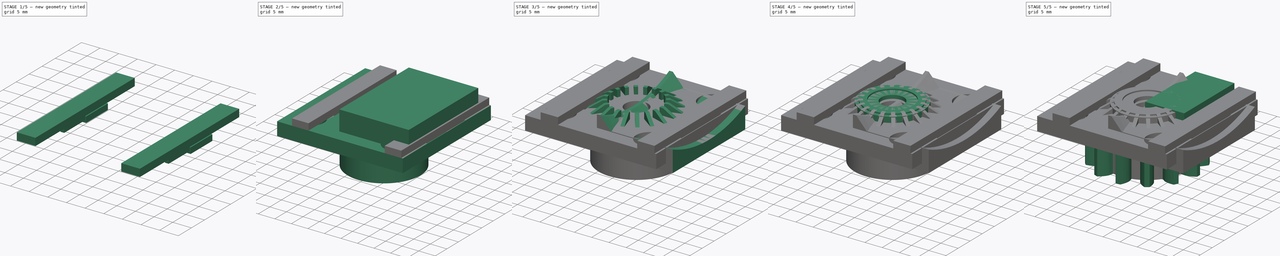
[diagram: build sequence overview — one tinted view per stage of 5, left to right]
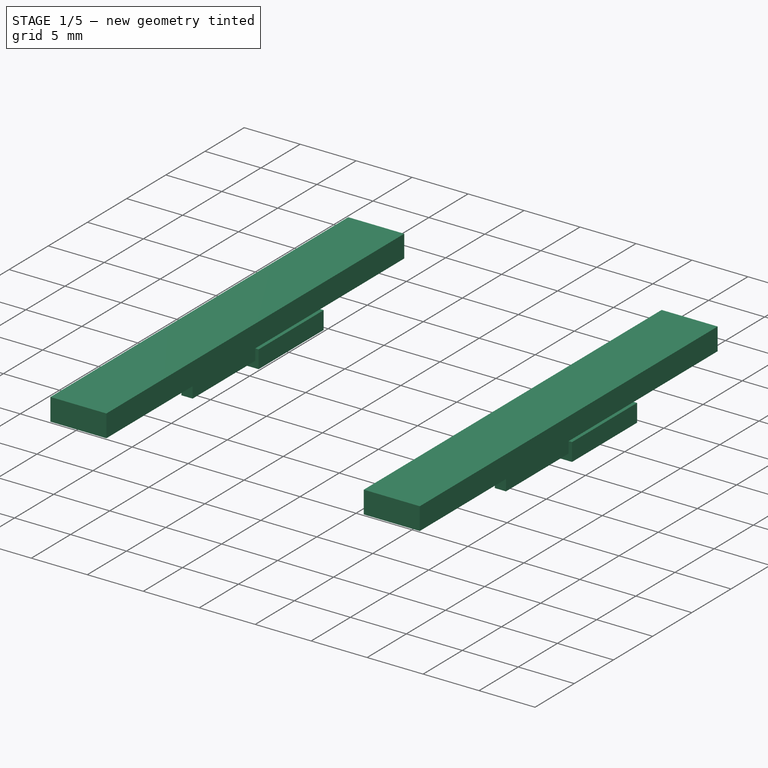
[diagram: stage 1 of 5 — iso view after this stage's code; geometry added in this stage tinted green]
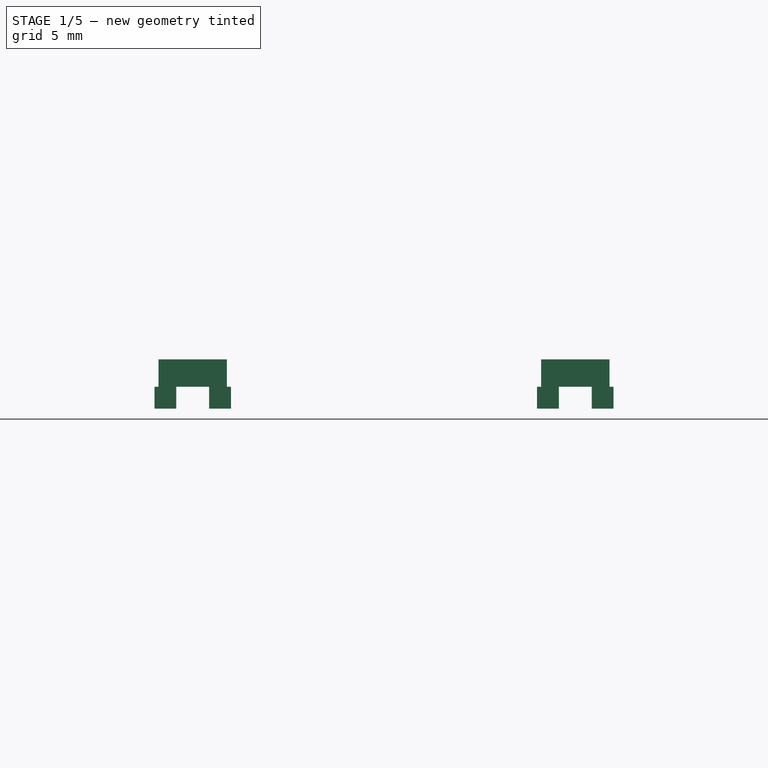
[diagram: stage 1 of 5 — front view after this stage's code; geometry added in this stage tinted green]
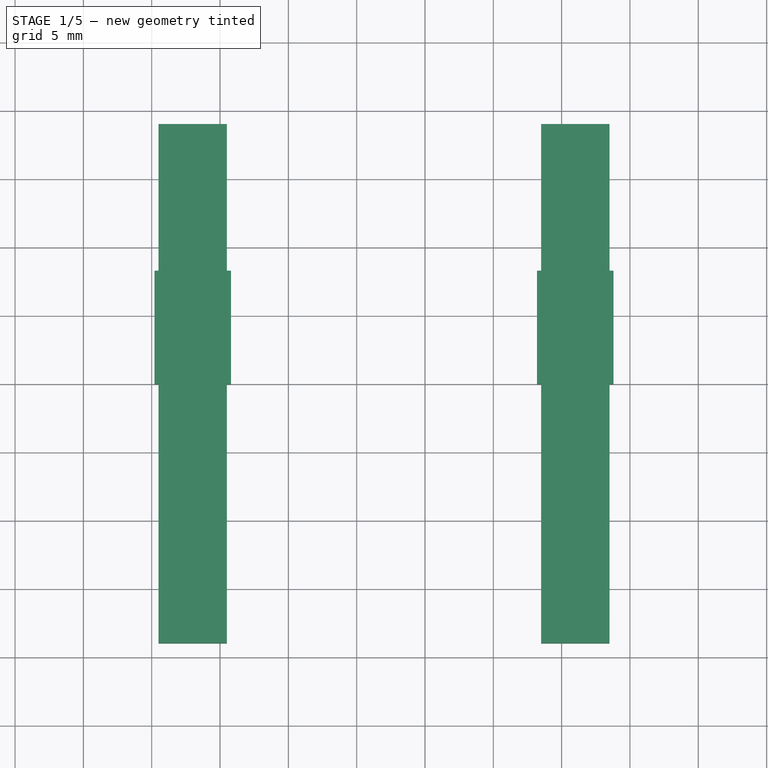
[diagram: stage 1 of 5 — top view after this stage's code; geometry added in this stage tinted green]
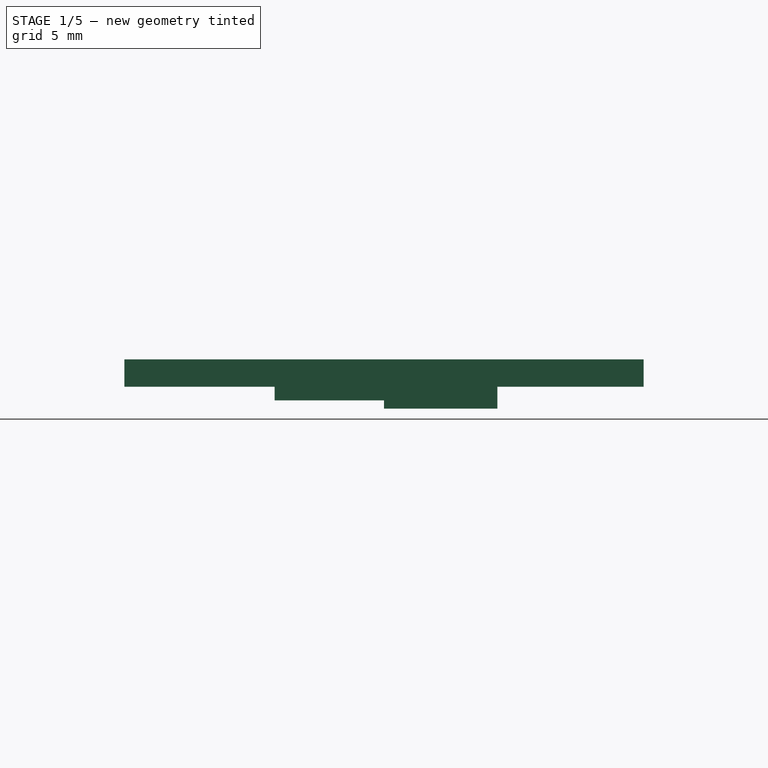
[diagram: stage 1 of 5 — right view after this stage's code; geometry added in this stage tinted green]
FCSTD DOCUMENT  (FreeCAD 0.19R24291 (Git))
Label: knob
License: All rights reserved
LicenseURL: http://en.wikipedia.org/wiki/All_rights_reserved
objects: Sketcher::SketchObject×22, Part::Extrusion×16, Part::MultiFuse×6, PartDesign::FeatureBase×6, PartDesign::Body×6, Part::Revolution×4, Part::Cut×3, Part::Mirroring×2, Part::Part2DObjectPython×1, Part::Sweep×1, Part::MultiCommon×1, Part::Compound×1, Part::FeaturePython×1, App::Part×1
note: 69 computed .brp shape members not serialized (recipe doc carries the construction recipe); baked Part::Feature solids carry a one-line shape summary decoded from their .brp

FEATURE [Sketcher::SketchObject] Sketch011
  FullyConstrained = true
  Placement = pos=(0,0,5) rot=(0,0,1;0rad)
  sketch-geometry (16):
    g0: LineSegment StartX=13.5 StartY=8 StartZ=0 EndX=14.5 EndY=8 EndZ=0
    g1: LineSegment StartX=14.5 StartY=8 StartZ=0 EndX=14.5 EndY=0 EndZ=0
    g2: LineSegment StartX=14.5 StartY=0 StartZ=0 EndX=13.5 EndY=0 EndZ=0
    g3: LineSegment StartX=13.5 StartY=0 StartZ=0 EndX=13.5 EndY=8 EndZ=0
    g4: LineSegment StartX=17.5 StartY=8 StartZ=0 EndX=18.5 EndY=8 EndZ=0
    g5: LineSegment StartX=18.5 StartY=8 StartZ=0 EndX=18.5 EndY=0 EndZ=0
    g6: LineSegment StartX=18.5 StartY=0 StartZ=0 EndX=17.5 EndY=0 EndZ=0
    g7: LineSegment StartX=17.5 StartY=0 StartZ=0 EndX=17.5 EndY=8 EndZ=0
    g8: LineSegment StartX=-9.5 StartY=0 StartZ=0 EndX=-10.5 EndY=0 EndZ=0
    g9: LineSegment StartX=-10.5 StartY=0 StartZ=0 EndX=-10.5 EndY=8 EndZ=0
    g10: LineSegment StartX=-10.5 StartY=8 StartZ=0 EndX=-9.5 EndY=8 EndZ=0
    g11: LineSegment StartX=-9.5 StartY=8 StartZ=0 EndX=-9.5 EndY=0 EndZ=0
    g12: LineSegment StartX=-13.5 StartY=0 StartZ=0 EndX=-14.5 EndY=0 EndZ=0
    g13: LineSegment StartX=-14.5 StartY=0 StartZ=0 EndX=-14.5 EndY=8 EndZ=0
    g14: LineSegment StartX=-14.5 StartY=8 StartZ=0 EndX=-13.5 EndY=8 EndZ=0
    g15: LineSegment StartX=-13.5 StartY=8 StartZ=0 EndX=-13.5 EndY=0 EndZ=0
  constraints (48):
    c: Coincident(g0,g1)
    c: Coincident(g1,g2)
    c: Coincident(g2,g3)
    c: Coincident(g3,g0)
    c: Horizontal(g0)
    c: Horizontal(g2)
    c: Vertical(g1)
    c: Vertical(g3)
    c: PointOnObject(g1,g-1)
    c: Coincident(g4,g5)
    c: Coincident(g5,g6)
    c: Coincident(g6,g7)
    c: Coincident(g7,g4)
    c: Horizontal(g4)
    c: Horizontal(g6)
    c: Vertical(g5)
    c: Vertical(g7)
    c: PointOnObject(g5,g-1)
    c: DistanceX(g2) = 13.5
    c: DistanceX(g2,g2) = 1
    c: DistanceX(g5) = 18.5
    c: DistanceX(g6,g6) = 1
    c: DistanceY(g5,g5) = 8
    c: DistanceY(g1,g1) = 8
    c: Coincident(g8,g9)
    c: Coincident(g9,g10)
    c: Coincident(g10,g11)
    c: Coincident(g11,g8)
    c: Horizontal(g8)
    c: Horizontal(g10)
    c: Vertical(g9)
    c: Vertical(g11)
    c: PointOnObject(g8,g-1)
    c: Coincident(g12,g13)
    c: Coincident(g13,g14)
    c: Coincident(g14,g15)
    c: Coincident(g15,g12)
    c: Horizontal(g12)
    c: Horizontal(g14)
    c: Vertical(g13)
    c: Vertical(g15)
    c: PointOnObject(g12,g-1)
    c: DistanceX(g12,g12) = 1
    c: DistanceX(g12) = -13.5
    c: DistanceX(g8) = -9.5
    c: DistanceY(g15,g15) = 8
    c: DistanceY(g11,g11) = 8
    c: DistanceX(g8,g8) = 1
FEATURE [Part::Extrusion] Extrude010
  Base = -> Sketch011
  Dir = (0,0,1)
  DirMode = 2
  FaceMakerClass = Part::FaceMakerBullseye
  LengthFwd = 0
  LengthRev = 1
  Placement = pos=(0,0,-1) rot=(0,0,1;0rad)
  Solid = true
  Symmetric = false
FEATURE [Sketcher::SketchObject] Sketch012
  FullyConstrained = true
  Placement = pos=(0,0,5) rot=(0,0,1;0rad)
  sketch-geometry (16):
    g0: LineSegment StartX=13.2 StartY=8.3 StartZ=0 EndX=14.8 EndY=8.3 EndZ=0
    g1: LineSegment StartX=14.8 StartY=8.3 StartZ=0 EndX=14.8 EndY=0 EndZ=0
    g2: LineSegment StartX=14.8 StartY=0 StartZ=0 EndX=13.2 EndY=0 EndZ=0
    g3: LineSegment StartX=13.2 StartY=0 StartZ=0 EndX=13.2 EndY=8.3 EndZ=0
    g4: LineSegment StartX=17.2 StartY=8.3 StartZ=0 EndX=18.8 EndY=8.3 EndZ=0
    g5: LineSegment StartX=18.8 StartY=8.3 StartZ=0 EndX=18.8 EndY=0 EndZ=0
    g6: LineSegment StartX=18.8 StartY=0 StartZ=0 EndX=17.2 EndY=0 EndZ=0
    g7: LineSegment StartX=17.2 StartY=0 StartZ=0 EndX=17.2 EndY=8.3 EndZ=0
    g8: LineSegment StartX=-9.2 StartY=0 StartZ=0 EndX=-10.8 EndY=0 EndZ=0
    g9: LineSegment StartX=-10.8 StartY=0 StartZ=0 EndX=-10.8 EndY=8.3 EndZ=0
    g10: LineSegment StartX=-10.8 StartY=8.3 StartZ=0 EndX=-9.2 EndY=8.3 EndZ=0
    g11: LineSegment StartX=-9.2 StartY=8.3 StartZ=0 EndX=-9.2 EndY=0 EndZ=0
    g12: LineSegment StartX=-13.2 StartY=0 StartZ=0 EndX=-14.8 EndY=0 EndZ=0
    g13: LineSegment StartX=-14.8 StartY=0 StartZ=0 EndX=-14.8 EndY=8.3 EndZ=0
    g14: LineSegment StartX=-14.8 StartY=8.3 StartZ=0 EndX=-13.2 EndY=8.3 EndZ=0
    g15: LineSegment StartX=-13.2 StartY=8.3 StartZ=0 EndX=-13.2 EndY=0 EndZ=0
  constraints (48):
    c: Coincident(g0,g1)
    c: Coincident(g1,g2)
    c: Coincident(g2,g3)
    c: Coincident(g3,g0)
    c: Horizontal(g0)
    c: Horizontal(g2)
    c: Vertical(g1)
    c: Vertical(g3)
    c: PointOnObject(g1,g-1)
    c: Coincident(g4,g5)
    c: Coincident(g5,g6)
    c: Coincident(g6,g7)
    c: Coincident(g7,g4)
    c: Horizontal(g4)
    c: Horizontal(g6)
    c: Vertical(g5)
    c: Vertical(g7)
    c: PointOnObject(g5,g-1)
    c: DistanceX(g1) = 14.8
    c: DistanceX(g2,g2) = 1.6
    c: DistanceY(g1,g1) = 8.3
    c: DistanceX(g6,g6) = 1.6
    c: DistanceY(g5,g5) = 8.3
    c: DistanceX(g6) = 17.2
    c: Coincident(g8,g9)
    c: Coincident(g9,g10)
    c: Coincident(g10,g11)
    c: Coincident(g11,g8)
    c: Horizontal(g8)
    c: Horizontal(g10)
    c: Vertical(g9)
    c: Vertical(g11)
    c: PointOnObject(g8,g-1)
    c: Coincident(g12,g13)
    c: Coincident(g13,g14)
    c: Coincident(g14,g15)
    c: Coincident(g15,g12)
    c: Horizontal(g12)
    c: Horizontal(g14)
    c: Vertical(g13)
    c: Vertical(g15)
    c: PointOnObject(g12,g-1)
    c: DistanceX(g8,g8) = 1.6
    c: DistanceX(g12,g12) = 1.6
    c: DistanceY(g11,g11) = 8.3
    c: DistanceY(g15,g15) = 8.3
    c: DistanceX(g8) = -9.2
    c: DistanceX(g12) = -13.2
FEATURE [Part::Extrusion] Extrude011
  Base = -> Sketch012
  Dir = (0,0,1)
  DirMode = 2
  FaceMakerClass = Part::FaceMakerBullseye
  LengthFwd = 0
  LengthRev = 1.6
  Placement = pos=(0,0,-1) rot=(0,0,1;0rad)
  Solid = true
  Symmetric = false
FEATURE [Sketcher::SketchObject] Sketch015
  FullyConstrained = true
  Placement = pos=(0,0,0) rot=(1,0,0;1.5708rad)
  sketch-geometry (8):
    g0: LineSegment StartX=-14.5 StartY=4 StartZ=0 EndX=-9.5 EndY=4 EndZ=0
    g1: LineSegment StartX=-9.5 StartY=4 StartZ=0 EndX=-9.5 EndY=6 EndZ=0
    g2: LineSegment StartX=-9.5 StartY=6 StartZ=0 EndX=-14.5 EndY=6 EndZ=0
    g3: LineSegment StartX=-14.5 StartY=6 StartZ=0 EndX=-14.5 EndY=4 EndZ=0
    g4: LineSegment StartX=13.5 StartY=6 StartZ=0 EndX=13.5 EndY=4 EndZ=0
    g5: LineSegment StartX=13.5 StartY=4 StartZ=0 EndX=18.5 EndY=4 EndZ=0
    g6: LineSegment StartX=18.5 StartY=4 StartZ=0 EndX=18.5 EndY=6 EndZ=0
    g7: LineSegment StartX=18.5 StartY=6 StartZ=0 EndX=13.5 EndY=6 EndZ=0
  constraints (24):
    c: Horizontal(g0)
    c: Coincident(g0,g1)
    c: Vertical(g1)
    c: Horizontal(g2)
    c: Coincident(g2,g3)
    c: Coincident(g3,g0)
    c: Vertical(g3)
    c: Vertical(g4)
    c: Coincident(g4,g5)
    c: Horizontal(g5)
    c: Coincident(g5,g6)
    c: Vertical(g6)
    c: Coincident(g6,g7)
    c: Horizontal(g7)
    c: Coincident(g1,g2)
    c: Coincident(g4,g7)
    c: DistanceX(g4) = 13.5
    c: DistanceY(g4) = 4
    c: DistanceX(g0) = -9.5
    c: Horizontal(g0,g4)
    c: DistanceY(g1,g1) = 2
    c: DistanceY(g4,g4) = 2
    c: DistanceX(g7,g7) = 5
    c: DistanceX(g2,g2) = 5
FEATURE [Part::Extrusion] Extrude012
  Base = -> Sketch015
  Dir = (0,-1,3e-16)
  DirMode = 2
  FaceMakerClass = Part::FaceMakerBullseye
  LengthFwd = 0
  LengthRev = 19
  Solid = true
  Symmetric = false
FEATURE [Part::MultiFuse] Fusion002
  Shapes = -> [Extrude010,Extrude012]
FEATURE [PartDesign::Body] Body
  BaseFeature = -> Cut
  Group = -> [Clone]
  Origin = -> Origin
  Tip = -> Clone
FEATURE [PartDesign::FeatureBase] Clone001
  BaseFeature = -> Fusion002
FEATURE [Part::Mirroring] Part__Mirroring001  label="Body001 (Mirror #2)"
  Base = (0,0,0)
  Normal = (0,1,0)
  Source = -> Body001
FEATURE [Part::MultiFuse] Fusion003  label="barrel"
  Shapes = -> [Fusion002,Part__Mirroring001]
FEATURE [PartDesign::Body] Body004
  BaseFeature = -> Fusion004
  Group = -> [Clone004]
  Origin = -> Origin004
  Placement = pos=(2.3e-14,0,-42) rot=(0,1,0;3.14159rad)
  Tip = -> Clone004
FEATURE [PartDesign::FeatureBase] Clone005
  BaseFeature = -> Fusion003
FEATURE [PartDesign::Body] Body005
  BaseFeature = -> Fusion003
  Group = -> [Clone005]
  Origin = -> Origin005
  Placement = pos=(5e-15,0,-42) rot=(0,1,0;3.14159rad)
  Tip = -> Clone005
FEATURE [App::Part] Part
  Group = -> [Body005,Body004,Body002]
  Origin = -> Origin006
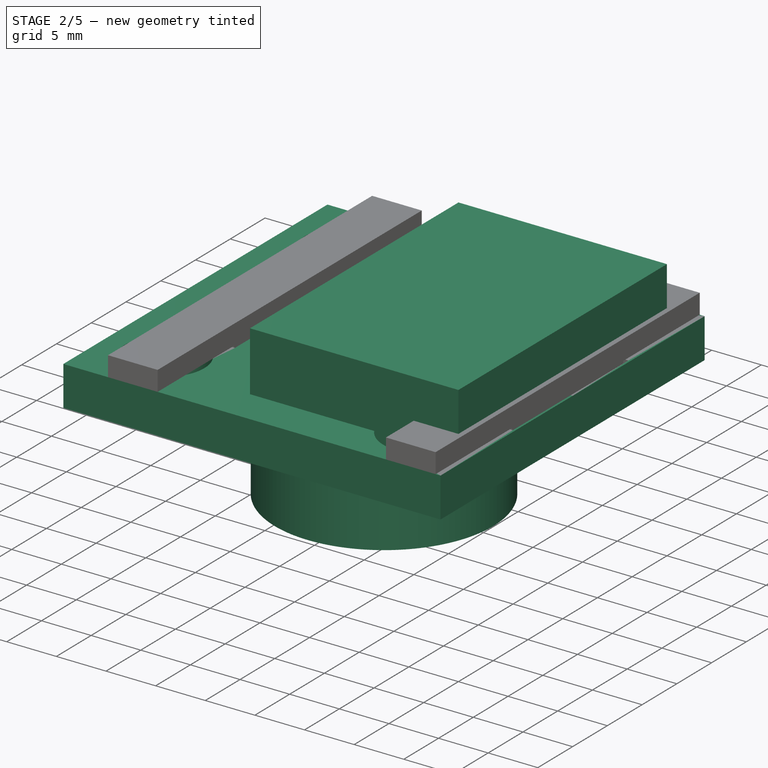
[diagram: stage 2 of 5 — iso view after this stage's code; geometry added in this stage tinted green]
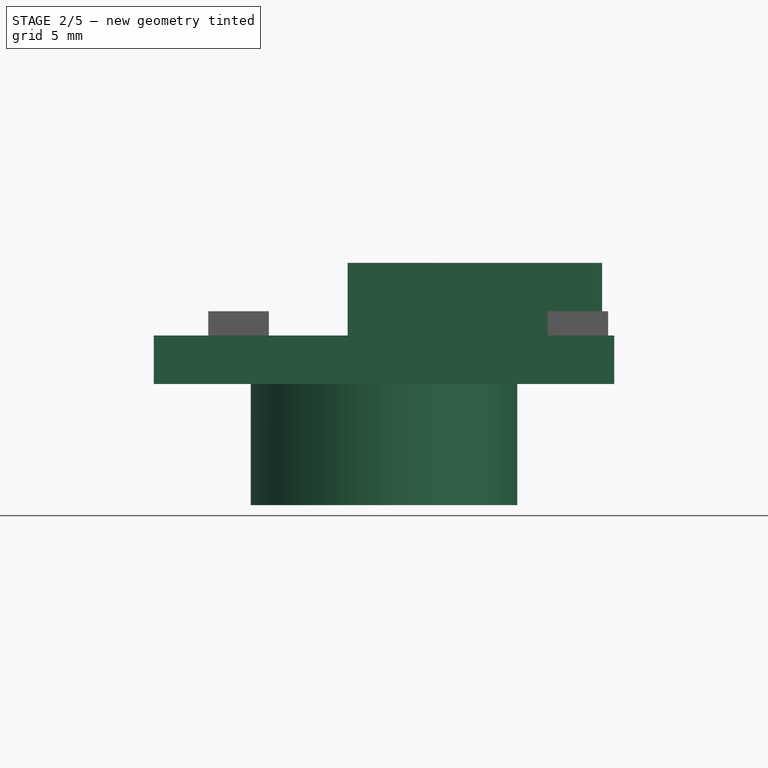
[diagram: stage 2 of 5 — front view after this stage's code; geometry added in this stage tinted green]
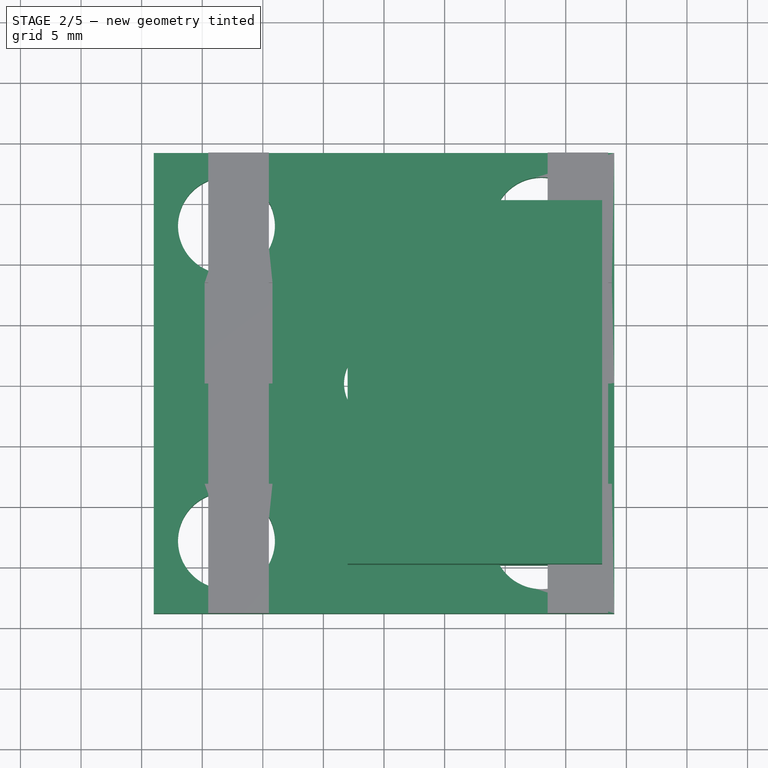
[diagram: stage 2 of 5 — top view after this stage's code; geometry added in this stage tinted green]
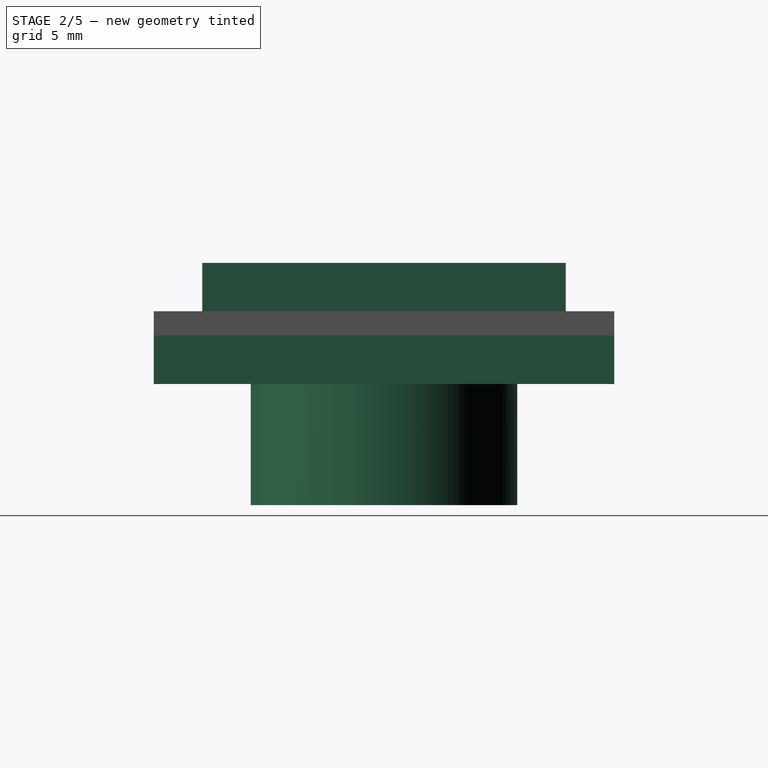
[diagram: stage 2 of 5 — right view after this stage's code; geometry added in this stage tinted green]
FEATURE [Sketcher::SketchObject] Sketch008
  FullyConstrained = true
  sketch-geometry (8):
    g0: ArcOfCircle CenterX=0 CenterY=0 CenterZ=0 NormalX=0 NormalY=0 NormalZ=1 AngleXU=0 Radius=3.3 StartAngle=0 EndAngle=3.14159
    g1: LineSegment StartX=3.3 StartY=0 StartZ=0 EndX=19 EndY=0 EndZ=0
    g2: LineSegment StartX=-19 StartY=19 StartZ=0 EndX=19 EndY=19 EndZ=0
    g3: LineSegment StartX=19 StartY=19 StartZ=0 EndX=19 EndY=0 EndZ=0
    g4: LineSegment StartX=-3.3 StartY=-9.903e-13 StartZ=0 EndX=-19 EndY=-9.903e-13 EndZ=0
    g5: LineSegment StartX=-19 StartY=-9.903e-13 StartZ=0 EndX=-19 EndY=19 EndZ=0
    g6: Circle CenterX=-13 CenterY=13 CenterZ=0 NormalX=0 NormalY=0 NormalZ=1 AngleXU=0 Radius=4
    g7: Circle CenterX=13 CenterY=13 CenterZ=0 NormalX=0 NormalY=0 NormalZ=1 AngleXU=0 Radius=4
  constraints (24):
    c: Coincident(g0,g-1)
    c: PointOnObject(g0,g-1)
    c: Coincident(g1,g0)
    c: Horizontal(g1)
    c: Radius(g0) = 3.3
    c: Horizontal(g2)
    c: Coincident(g3,g1)
    c: Vertical(g3)
    c: PointOnObject(g0,g-1)
    c: Coincident(g0,g4)
    c: Coincident(g4,g5)
    c: Vertical(g5)
    c: Horizontal(g4)
    c: DistanceX(g4) = -19
    c: DistanceX(g1) = 19
    c: DistanceY(g2) = 19
    c: Coincident(g2,g5)
    c: Coincident(g2,g3)
    c: DistanceX(g7) = 13
    c: DistanceY(g7) = 13
    c: DistanceX(g6) = -13
    c: Horizontal(g6,g7)
    c: Radius(g7) = 4
    c: Radius(g6) = 4
FEATURE [Part::Extrusion] Extrude007
  Base = -> Sketch008
  Dir = (0,0,1)
  DirMode = 2
  FaceMakerClass = Part::FaceMakerBullseye
  LengthFwd = 4
  LengthRev = 0
  Solid = true
  Symmetric = false
FEATURE [Part::Cut] Cut
  Base = -> Extrude007
  Tool = -> Extrude011
FEATURE [Sketcher::SketchObject] Sketch014
  FullyConstrained = true
  Placement = pos=(0,0,0) rot=(1,0,0;1.5708rad)
  sketch-geometry (5):
    g0: LineSegment StartX=-11 StartY=0 StartZ=0 EndX=-11 EndY=-10 EndZ=0
    g1: LineSegment StartX=-11 StartY=-10 StartZ=0 EndX=-10 EndY=-10 EndZ=0
    g2: LineSegment StartX=-10 StartY=-10 StartZ=0 EndX=-10 EndY=-3 EndZ=0
    g3: LineSegment StartX=-10 StartY=-3 StartZ=0 EndX=-7 EndY=0 EndZ=0
    g4: LineSegment StartX=-7 StartY=0 StartZ=0 EndX=-11 EndY=0 EndZ=0
  constraints (15):
    c: PointOnObject(g0,g-1)
    c: Vertical(g0)
    c: Coincident(g0,g1)
    c: Horizontal(g1)
    c: Coincident(g1,g2)
    c: Vertical(g2)
    c: Coincident(g2,g3)
    c: Coincident(g3,g4)
    c: Coincident(g4,g0)
    c: Horizontal(g4)
    c: DistanceY(g0,g0) = 10
    c: DistanceX(g4,g4) = 4
    c: DistanceX(g1,g1) = 1
    c: DistanceY(g2,g3) = 3
    c: DistanceX(g0) = -11
FEATURE [Part::Revolution] Revolve001
  Angle = 360
  Axis = (0,0,1)
  Base = (0,0,0)
  FaceMakerClass = Part::FaceMakerBullseye
  Solid = true
  Source = -> Sketch014
  Symmetric = false
FEATURE [PartDesign::FeatureBase] Clone
  BaseFeature = -> Cut
FEATURE [PartDesign::Body] Body001
  BaseFeature = -> Fusion002
  Group = -> [Clone001]
  Origin = -> Origin001
  Tip = -> Clone001
FEATURE [Part::Mirroring] Part__Mirroring  label="Body (Mirror #1)"
  Base = (0,0,0)
  Normal = (0,1,0)
  Source = -> Body
FEATURE [Part::MultiFuse] Fusion004  label="barrel001"
  Shapes = -> [Part__Mirroring,Cut,Revolve001]
FEATURE [Sketcher::SketchObject] Sketch020
  FullyConstrained = true
  sketch-geometry (4):
    g0: LineSegment StartX=-3 StartY=15 StartZ=0 EndX=18 EndY=15 EndZ=0
    g1: LineSegment StartX=18 StartY=15 StartZ=0 EndX=18 EndY=-15 EndZ=0
    g2: LineSegment StartX=18 StartY=-15 StartZ=0 EndX=-3 EndY=-15 EndZ=0
    g3: LineSegment StartX=-3 StartY=-15 StartZ=0 EndX=-3 EndY=15 EndZ=0
  constraints (12):
    c: Coincident(g0,g1)
    c: Coincident(g1,g2)
    c: Coincident(g2,g3)
    c: Coincident(g3,g0)
    c: Horizontal(g0)
    c: Horizontal(g2)
    c: Vertical(g1)
    c: Vertical(g3)
    c: DistanceX(g0,g0) = 21
    c: DistanceY(g1,g1) = 30
    c: DistanceX(g0) = 18
    c: DistanceY(g0) = 15
FEATURE [Part::Extrusion] Extrude015
  Base = -> Sketch020
  Dir = (0,0,1)
  DirMode = 2
  FaceMakerClass = Part::FaceMakerBullseye
  LengthFwd = 10
  LengthRev = 0
  Solid = true
  Symmetric = false
FEATURE [PartDesign::FeatureBase] Clone004
  BaseFeature = -> Fusion004
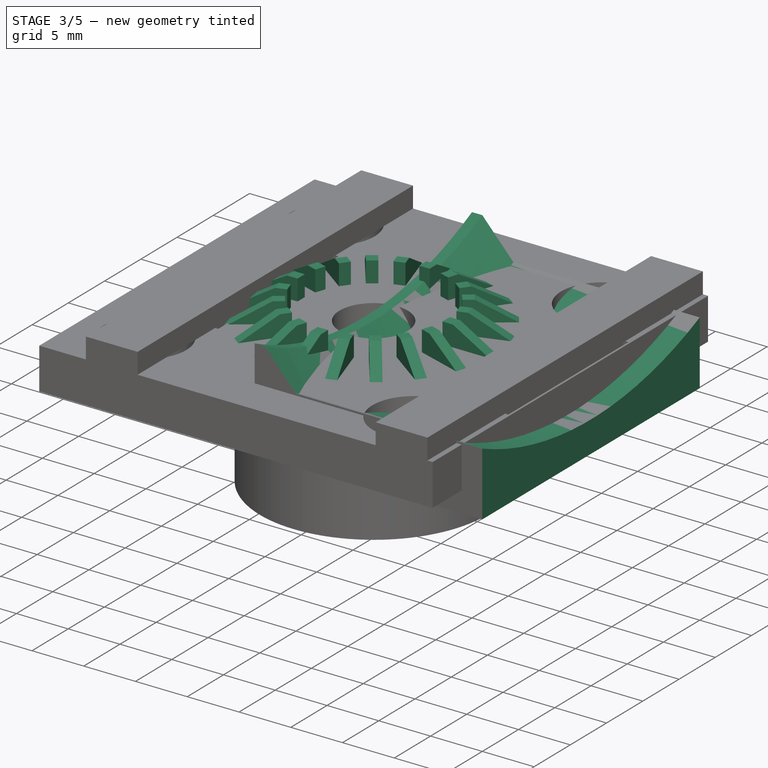
[diagram: stage 3 of 5 — iso view after this stage's code; geometry added in this stage tinted green]
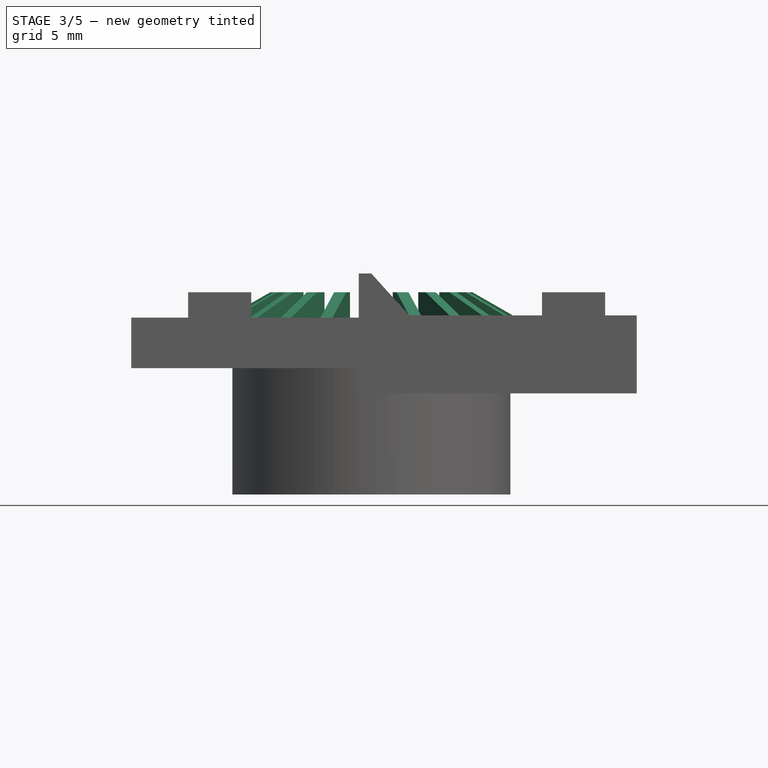
[diagram: stage 3 of 5 — front view after this stage's code; geometry added in this stage tinted green]
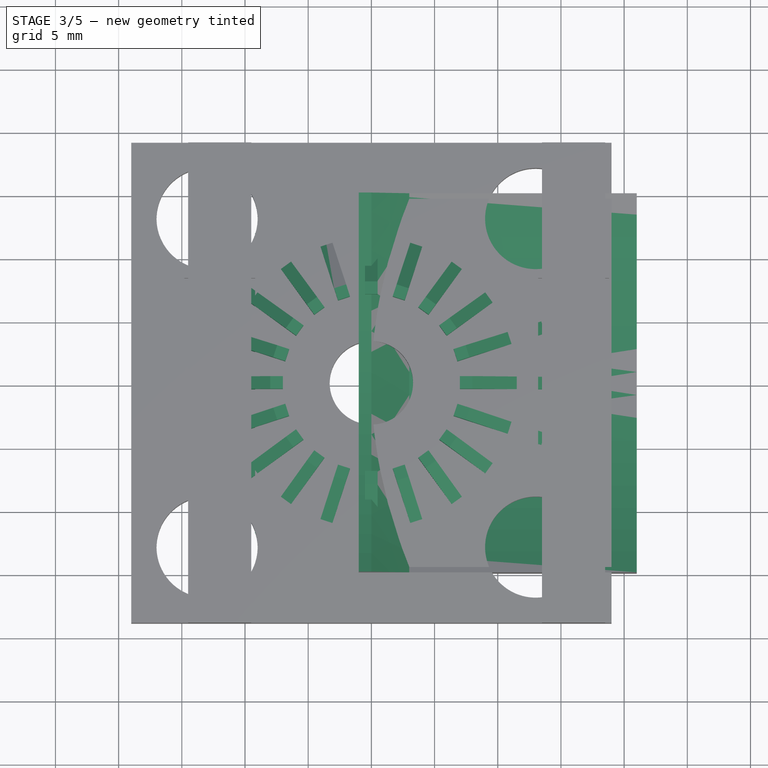
[diagram: stage 3 of 5 — top view after this stage's code; geometry added in this stage tinted green]
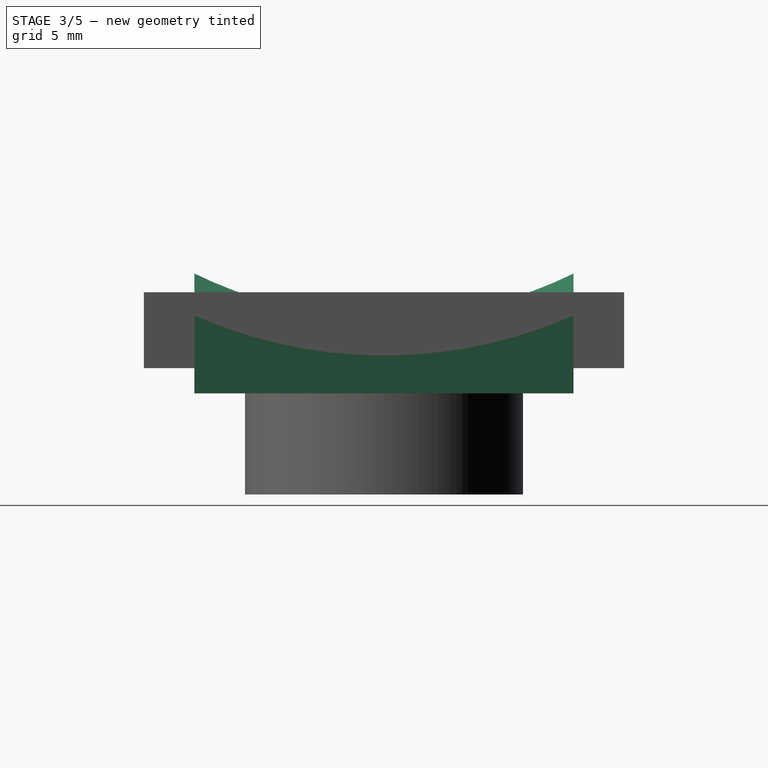
[diagram: stage 3 of 5 — right view after this stage's code; geometry added in this stage tinted green]
FEATURE [Sketcher::SketchObject] Sketch016
  FullyConstrained = true
  Placement = pos=(0,0,0) rot=(0.57735,0.57735,0.57735;2.0944rad)
  sketch-geometry (1):
    g0: ArcOfCircle CenterX=0 CenterY=38 CenterZ=0 NormalX=0 NormalY=0 NormalZ=1 AngleXU=0 Radius=37 StartAngle=4.14131 EndAngle=5.28347
  constraints (5):
    c: PointOnObject(g0,g-2)
    c: Radius(g0) = 37
    c: DistanceX(g0) = 20
    c: DistanceY(g0) = 38
    c: DistanceX(g0) = -20
FEATURE [Sketcher::SketchObject] Sketch017
  FullyConstrained = false
  Placement = pos=(0,0,0) rot=(1,0,0;1.5708rad)
  sketch-geometry (4):
    g0: LineSegment StartX=0 StartY=4 StartZ=0 EndX=3 EndY=1 EndZ=0
    g1: LineSegment StartX=0 StartY=4 StartZ=0 EndX=-1 EndY=4 EndZ=0
    g2: LineSegment StartX=-1 StartY=4 StartZ=0 EndX=-1 EndY=1 EndZ=0
    g3: LineSegment StartX=-1 StartY=1 StartZ=0 EndX=3 EndY=1 EndZ=0
  constraints (8):
    c: PointOnObject(g0,g-2)
    c: Coincident(g0,g1)
    c: Horizontal(g1)
    c: Coincident(g1,g2)
    c: Vertical(g2)
    c: Coincident(g2,g3)
    c: Coincident(g3,g0)
    c: Horizontal(g3)
FEATURE [Part::Sweep] Sweep
  Frenet = false
  Sections = -> [Sketch017]
  Solid = true
  Spine = -> Sketch016
  Transition = 1
FEATURE [Sketcher::SketchObject] Sketch018
  FullyConstrained = true
  sketch-geometry (5):
    g0: LineSegment StartX=-1 StartY=15 StartZ=0 EndX=21 EndY=15 EndZ=0
    g1: LineSegment StartX=21 StartY=15 StartZ=0 EndX=21 EndY=-15 EndZ=0
    g2: LineSegment StartX=21 StartY=-15 StartZ=0 EndX=-1 EndY=-15 EndZ=0
    g3: LineSegment StartX=-1 StartY=-15 StartZ=0 EndX=-1 EndY=15 EndZ=0
    g4: Circle CenterX=12 CenterY=0 CenterZ=0 NormalX=0 NormalY=0 NormalZ=1 AngleXU=0 Radius=3.3
  constraints (15):
    c: Coincident(g0,g1)
    c: Coincident(g1,g2)
    c: Coincident(g2,g3)
    c: Coincident(g3,g0)
    c: Horizontal(g0)
    c: Horizontal(g2)
    c: Vertical(g1)
    c: Vertical(g3)
    c: PointOnObject(g4,g-1)
    c: Radius(g4) = 3.3
    c: DistanceX(g0,g4) = 13
    c: DistanceX(g0,g0) = 22
    c: DistanceY(g1,g1) = 30
    c: DistanceX(g0) = 21
    c: DistanceY(g0) = 15
FEATURE [Part::Extrusion] Extrude013
  Base = -> Sketch018
  Dir = (0,0,1)
  DirMode = 2
  FaceMakerClass = Part::FaceMakerBullseye
  LengthFwd = 10
  LengthRev = 2
  Solid = true
  Symmetric = false
FEATURE [Sketcher::SketchObject] Sketch019
  FullyConstrained = false
  Placement = pos=(-2,0,0) rot=(0.57735,0.57735,0.57735;2.0944rad)
  sketch-geometry (2):
    g0: ArcOfCircle CenterX=0 CenterY=38 CenterZ=0 NormalX=0 NormalY=0 NormalZ=1 AngleXU=0 Radius=37 StartAngle=3.62957 EndAngle=5.79521
    g1: LineSegment StartX=-32.6815 StartY=20.6529 StartZ=0 EndX=32.6815 EndY=20.6529 EndZ=0
  constraints (6):
    c: PointOnObject(g0,g-2)
    c: Radius(g0) = 37
    c: DistanceY(g0) = 38
    c: Coincident(g1,g0)
    c: Coincident(g1,g0)
    c: Horizontal(g1)
FEATURE [Part::Extrusion] Extrude014
  Base = -> Sketch019
  Dir = (1,-2e-16,2e-16)
  DirMode = 2
  FaceMakerClass = Part::FaceMakerBullseye
  LengthFwd = 30
  LengthRev = 0
  Solid = true
  Symmetric = false
FEATURE [Part::Cut] Cut002
  Base = -> Extrude013
  Tool = -> Extrude014
FEATURE [Part::MultiCommon] Common
  Shapes = -> [Extrude015,Sweep]
FEATURE [Part::Compound] Compound  label="lens adapter"
  Links = -> [Cut002,Common]
FEATURE [PartDesign::FeatureBase] Clone002
  BaseFeature = -> Compound
FEATURE [Sketcher::SketchObject] Sketch023
  FullyConstrained = true
  Placement = pos=(0,0,0) rot=(1,0,0;1.5708rad)
  sketch-geometry (4):
    g0: LineSegment StartX=-8 StartY=6 StartZ=0 EndX=-15 EndY=2 EndZ=0
    g1: LineSegment StartX=-15 StartY=2 StartZ=0 EndX=-7 EndY=2 EndZ=0
    g2: LineSegment StartX=-8 StartY=6 StartZ=0 EndX=-7 EndY=6 EndZ=0
    g3: LineSegment StartX=-7 StartY=6 StartZ=0 EndX=-7 EndY=2 EndZ=0
  constraints (12):
    c: Coincident(g0,g1)
    c: Horizontal(g1)
    c: Coincident(g0,g2)
    c: Horizontal(g2)
    c: Coincident(g2,g3)
    c: Vertical(g3)
    c: Coincident(g1,g3)
    c: DistanceX(g1) = -7
    c: DistanceY(g1) = 2
    c: DistanceY(g3,g3) = 4
    c: DistanceX(g1,g1) = 8
    c: DistanceX(g2,g2) = 1
FEATURE [Part::Extrusion] Extrude016
  Base = -> Sketch023
  Dir = (0,-1,3e-16)
  DirMode = 2
  FaceMakerClass = Part::FaceMakerBullseye
  LengthFwd = 0.5
  LengthRev = 0.5
  Solid = true
  Symmetric = false
FEATURE [Part::FeaturePython] Array  # Draft array (typed FeaturePython)
  Angle = 360
  ArrayType = 1
  Axis = (0,0,1)
  Base = -> Extrude016
  Center = (0,0,0)
  Count = 20
  ExpandArray = false
  Fuse = false
  IntervalAxis = (0,0,0)
  IntervalX = (100,0,0)
  IntervalY = (0,100,0)
  IntervalZ = (0,0,100)
  NumberCircles = 3
  NumberPolar = 20
  NumberX = 2
  NumberY = 2
  NumberZ = 1
  PlacementList = 20 placements: [(0,0,0),(0,0,0),(0,0,0),(0,0,0),(0,0,0),(0,0,0),(0,0,0),(0,0,0),(0,0,0),(0,0,0),(0,0,0),(0,0,0),(0,0,0),(0,0,0),(0,0,0),(0,0,0),(0,0,0),(0,0,0),(0,0,0),(0,0,0)]
  RadialDistance = 50
  ScaleList = (20) [(1,1,1),(1,1,1),(1,1,1),(1,1,1),(1,1,1),(1,1,1),(1,1,1),(1,1,1),(1,1,1),(1,1,1),(1,1,1),(1,1,1),(1,1,1),(1,1,1),(1,1,1),(1,1,1),(1,1,1),(1,1,1),(1,1,1),(1,1,1)]
  Symmetry = 1
  TangentialDistance = 25
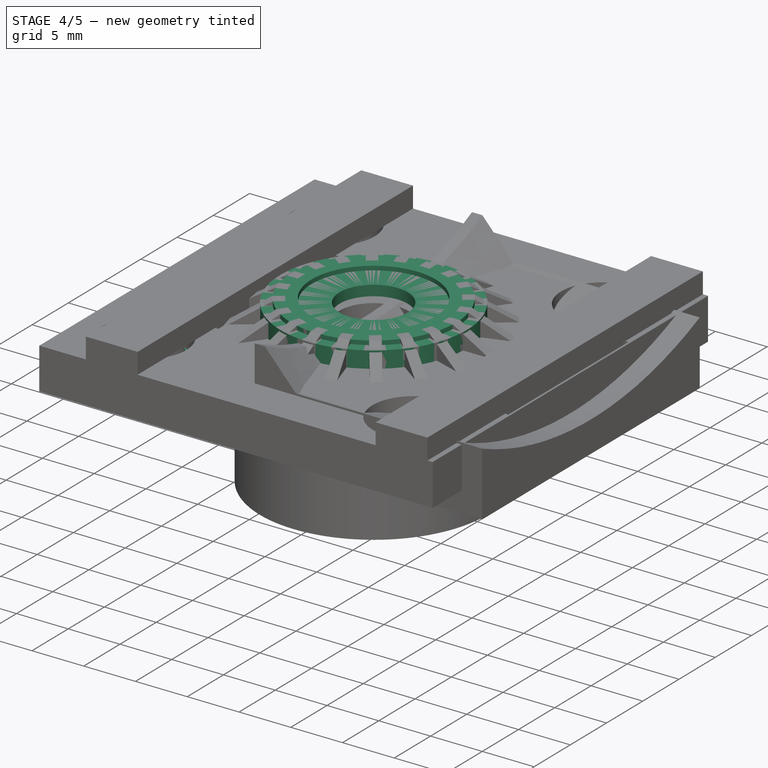
[diagram: stage 4 of 5 — iso view after this stage's code; geometry added in this stage tinted green]
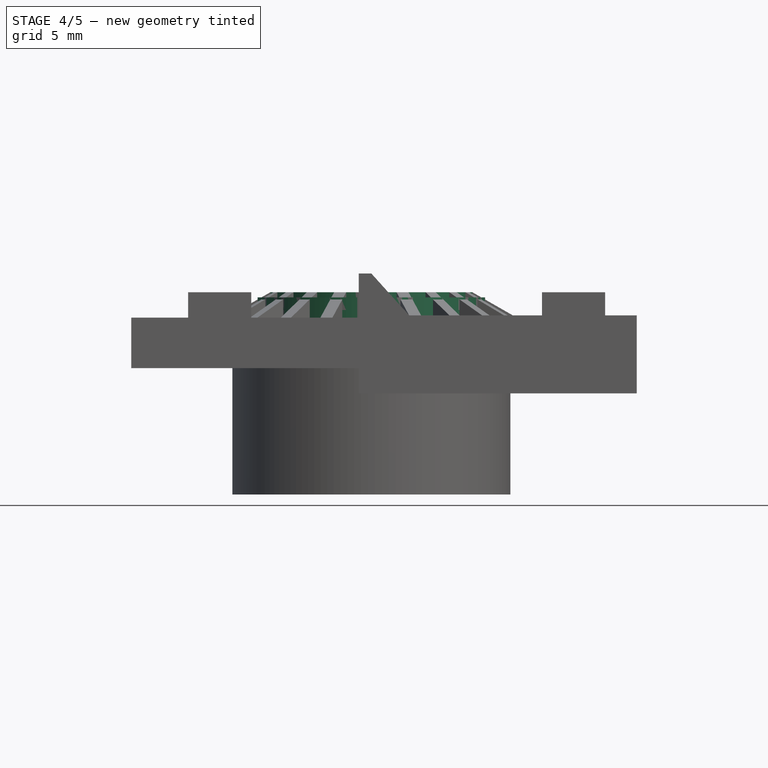
[diagram: stage 4 of 5 — front view after this stage's code; geometry added in this stage tinted green]
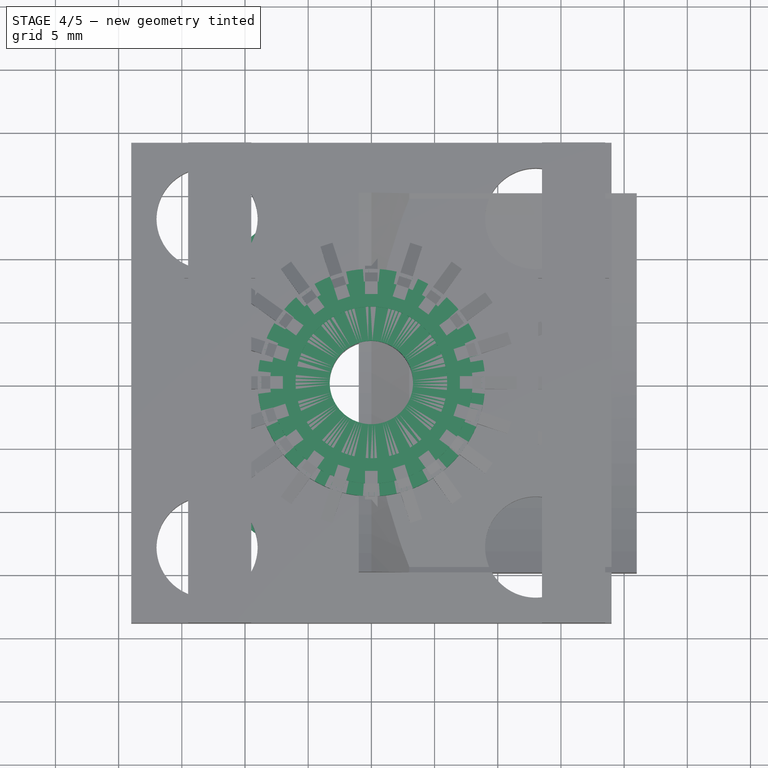
[diagram: stage 4 of 5 — top view after this stage's code; geometry added in this stage tinted green]
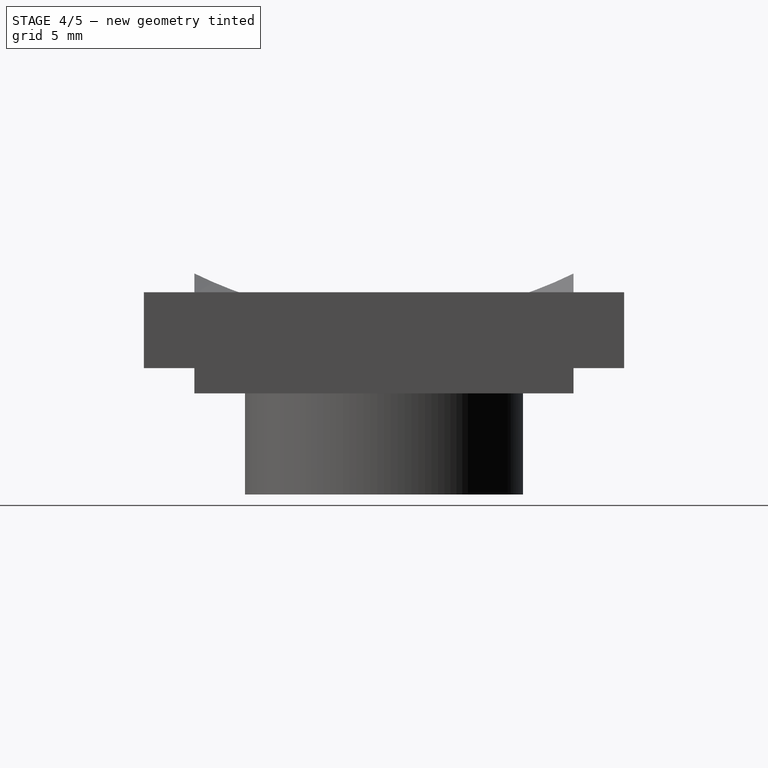
[diagram: stage 4 of 5 — right view after this stage's code; geometry added in this stage tinted green]
FEATURE [Sketcher::SketchObject] Sketch001
  FullyConstrained = true
  sketch-geometry (8):
    g0: LineSegment StartX=5.71577 StartY=3.3 StartZ=0 EndX=3.3165e-12 EndY=6.6 EndZ=0
    g1: LineSegment StartX=3.3165e-12 StartY=6.6 StartZ=0 EndX=-5.71577 EndY=3.3 EndZ=0
    g2: LineSegment StartX=-5.71577 StartY=3.3 StartZ=0 EndX=-5.71577 EndY=-3.3 EndZ=0
    g3: LineSegment StartX=-5.71577 StartY=-3.3 StartZ=0 EndX=-2.8288e-12 EndY=-6.6 EndZ=0
    g4: LineSegment StartX=-2.8288e-12 StartY=-6.6 StartZ=0 EndX=5.71577 EndY=-3.3 EndZ=0
    g5: LineSegment StartX=5.71577 StartY=-3.3 StartZ=0 EndX=5.71577 EndY=3.3 EndZ=0
    g6: Circle CenterX=0 CenterY=0 CenterZ=0 NormalX=0 NormalY=0 NormalZ=1 AngleXU=0 Radius=6.6
    g7: Circle CenterX=0 CenterY=0 CenterZ=0 NormalX=0 NormalY=0 NormalZ=1 AngleXU=0 Radius=9
  constraints (18):
    c: Coincident(g0,g1)
    c: Coincident(g1,g2)
    c: Coincident(g2,g3)
    c: Coincident(g3,g4)
    c: Coincident(g4,g5)
    c: Coincident(g5,g0)
    c: Equal(g0, g1-g5) x5
    c: PointOnObject(g0,g6)
    c: PointOnObject(g1,g6)
    c: PointOnObject(g2,g6)
    c: PointOnObject(g3,g6)
    c: PointOnObject(g4,g6)
    c: PointOnObject(g5,g6)
    c: Coincident(g6,g-1)
    c: Radius(g6) = 6.6
    c: Vertical(g5)
    c: Coincident(g7,g-1)
    c: Radius(g7) = 9
FEATURE [Sketcher::SketchObject] Sketch002
  FullyConstrained = false
  sketch-geometry (2):
    g0: Circle CenterX=0 CenterY=0 CenterZ=0 NormalX=0 NormalY=0 NormalZ=1 AngleXU=0 Radius=9
    g1: Circle CenterX=0 CenterY=0 CenterZ=0 NormalX=0 NormalY=0 NormalZ=1 AngleXU=0 Radius=3.3
  constraints (3):
    c: Radius(g0) = 9
    c: Coincident(g1,g0)
    c: Radius(g1) = 3.3
FEATURE [Part::Extrusion] Extrude001
  Base = -> Sketch002
  Dir = (0,0,1)
  DirMode = 2
  FaceMakerClass = Part::FaceMakerBullseye
  LengthFwd = 1
  LengthRev = 0
  Placement = pos=(0,0,4.6) rot=(0,0,1;0rad)
  Solid = true
  Symmetric = false
FEATURE [Part::Extrusion] Extrude002
  Base = -> Sketch001
  Dir = (0,0,1)
  DirMode = 2
  FaceMakerClass = Part::FaceMakerBullseye
  LengthFwd = 4.6
  LengthRev = 0
  Solid = true
  Symmetric = false
FEATURE [Sketcher::SketchObject] Sketch003
  FullyConstrained = false
  sketch-geometry (2):
    g0: Circle CenterX=0 CenterY=0 CenterZ=0 NormalX=0 NormalY=0 NormalZ=1 AngleXU=0 Radius=8.5
    g1: Circle CenterX=0 CenterY=0 CenterZ=0 NormalX=0 NormalY=0 NormalZ=1 AngleXU=0 Radius=7.5
  constraints (3):
    c: Radius(g0) = 8.5
    c: Coincident(g1,g0)
    c: Radius(g1) = 7.5
FEATURE [Part::Extrusion] Extrude003
  Base = -> Sketch003
  Dir = (0,0,1)
  DirMode = 2
  FaceMakerClass = Part::FaceMakerBullseye
  LengthFwd = 0
  LengthRev = 1.2
  Solid = true
  Symmetric = false
FEATURE [Sketcher::SketchObject] Sketch007
  FullyConstrained = true
  Placement = pos=(0,0,0) rot=(1,0,0;1.5708rad)
  sketch-geometry (3):
    g0: LineSegment StartX=-9 StartY=1.4 StartZ=0 EndX=-9 EndY=0 EndZ=0
    g1: LineSegment StartX=-9 StartY=0 StartZ=0 EndX=-10.4 EndY=0 EndZ=0
    g2: LineSegment StartX=-10.4 StartY=0 StartZ=0 EndX=-9 EndY=1.4 EndZ=0
  constraints (9):
    c: Vertical(g0)
    c: Coincident(g0,g1)
    c: PointOnObject(g1,g-1)
    c: Horizontal(g1)
    c: Coincident(g1,g2)
    c: Coincident(g2,g0)
    c: DistanceX(g1,g0) = 1.4
    c: DistanceY(g1,g0) = 1.4
    c: DistanceX(g0) = -9
FEATURE [Part::Revolution] Revolve
  Angle = 360
  Axis = (0,0,1)
  Base = (0,0,0)
  FaceMakerClass = Part::FaceMakerBullseye
  Solid = true
  Source = -> Sketch007
  Symmetric = false
FEATURE [Part::MultiFuse] Fusion  label="knob1"
  Shapes = -> [Extrude002,Extrude001,Extrude003,Revolve]
FEATURE [PartDesign::FeatureBase] Clone003
  BaseFeature = -> Fusion
FEATURE [PartDesign::Body] Body003
  BaseFeature = -> Fusion
  Group = -> [Clone003]
  Origin = -> Origin003
  Placement = pos=(-1e-15,0,12) rot=(0,1,0;3.14159rad)
  Tip = -> Clone003
FEATURE [Sketcher::SketchObject] Sketch022
  FullyConstrained = true
  Placement = pos=(0,0,0) rot=(1,0,0;1.5708rad)
  sketch-geometry (8):
    g0: LineSegment StartX=-3.3 StartY=1 StartZ=0 EndX=-15 EndY=1 EndZ=0
    g1: LineSegment StartX=-15 StartY=2 StartZ=0 EndX=-15 EndY=1 EndZ=0
    g2: LineSegment StartX=-8 StartY=6 StartZ=0 EndX=-8 EndY=2 EndZ=0
    g3: LineSegment StartX=-8 StartY=2 StartZ=0 EndX=-15 EndY=2 EndZ=0
    g4: LineSegment StartX=-8 StartY=6 StartZ=0 EndX=-6 EndY=6 EndZ=0
    g5: LineSegment StartX=-6 StartY=6 StartZ=0 EndX=-6 EndY=2 EndZ=0
    g6: LineSegment StartX=-6 StartY=2 StartZ=0 EndX=-3.3 EndY=2 EndZ=0
    g7: LineSegment StartX=-3.3 StartY=2 StartZ=0 EndX=-3.3 EndY=1 EndZ=0
  constraints (24):
    c: Horizontal(g0)
    c: Coincident(g1,g0)
    c: Vertical(g1)
    c: DistanceY(g0,g4) = 5
    c: DistanceX(g1,g4) = 9
    c: DistanceY(g0) = 1
    c: Vertical(g2)
    c: Coincident(g2,g3)
    c: Coincident(g3,g1)
    c: Horizontal(g3)
    c: DistanceX(g2,g4) = 2
    c: DistanceY(g1,g1) = 1
    c: Coincident(g4,g2)
    c: Horizontal(g4)
    c: Coincident(g4,g5)
    c: Vertical(g5)
    c: Coincident(g5,g6)
    c: Horizontal(g6)
    c: Coincident(g6,g7)
    c: Vertical(g7)
    c: DistanceX(g7) = -3.3
    c: Coincident(g0,g7)
    c: Horizontal(g5,g2)
    c: DistanceX(g6,g6) = 2.7
FEATURE [Part::Revolution] Revolve003
  Angle = 360
  Axis = (0,0,1)
  Base = (0,0,0)
  FaceMakerClass = Part::FaceMakerBullseye
  Solid = true
  Source = -> Sketch022
  Symmetric = false
FEATURE [Part::MultiFuse] Fusion005  label="barrel003"
  Shapes = -> [Array,Revolve003]
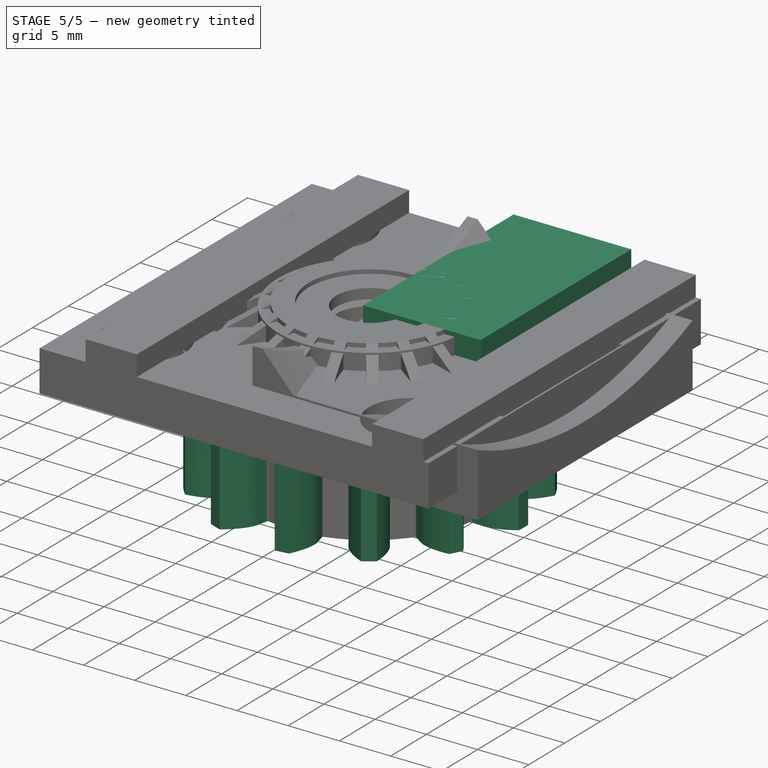
[diagram: stage 5 of 5 — iso view after this stage's code; geometry added in this stage tinted green]
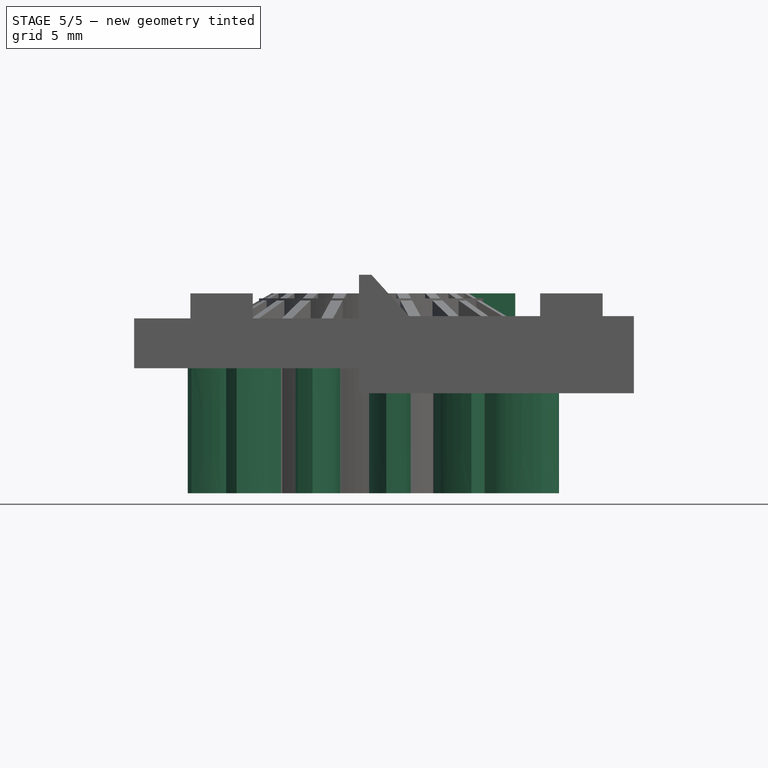
[diagram: stage 5 of 5 — front view after this stage's code; geometry added in this stage tinted green]
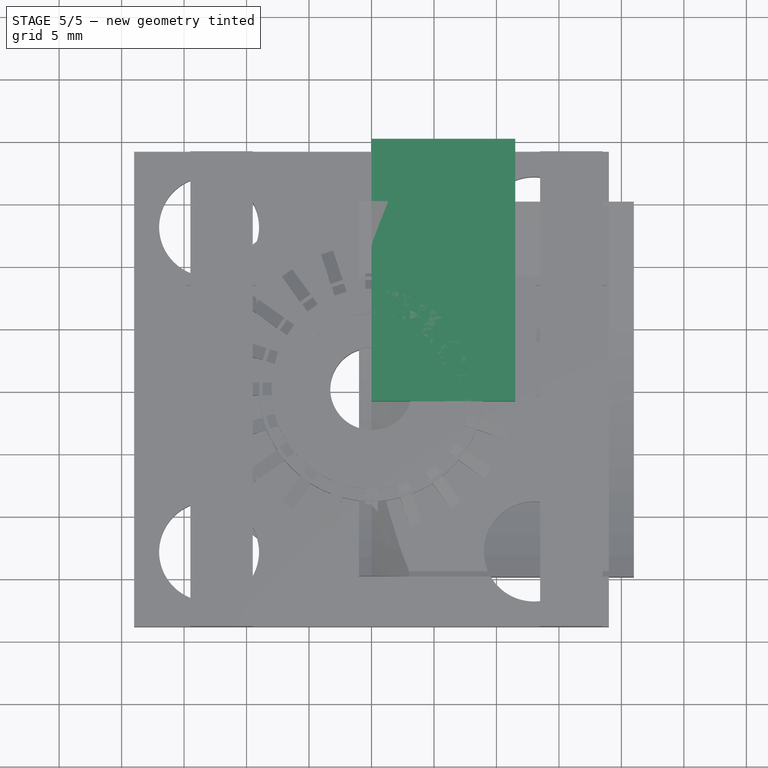
[diagram: stage 5 of 5 — top view after this stage's code; geometry added in this stage tinted green]
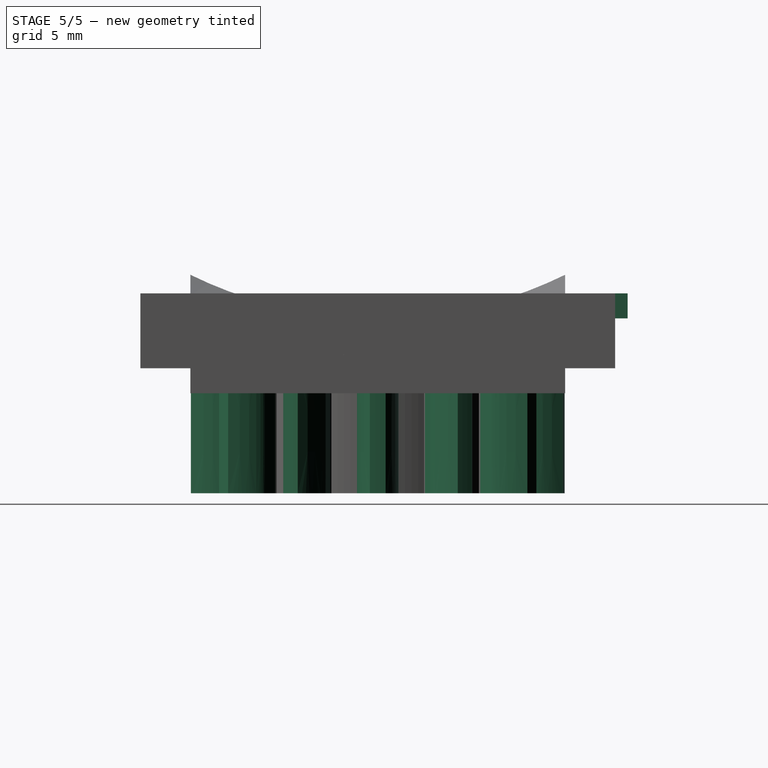
[diagram: stage 5 of 5 — right view after this stage's code; geometry added in this stage tinted green]
FEATURE [Part::Part2DObjectPython] InvoluteGear  # Draft 2D object (typed FeaturePython)
  ExternalGear = true
  HighPrecision = true
  Modules = 2
  NumberOfTeeth = 13
  PressureAngle = 20
FEATURE [Sketcher::SketchObject] Sketch
  FullyConstrained = false
  sketch-geometry (1):
    g0: Circle CenterX=0 CenterY=0 CenterZ=0 NormalX=0 NormalY=0 NormalZ=1 AngleXU=0 Radius=15
  constraints (1):
    c: Coincident(g0,g-1)
FEATURE [Part::Extrusion] Extrude
  Base = -> InvoluteGear
  Dir = (0,0,1)
  DirMode = 2
  FaceMakerClass = Part::FaceMakerBullseye
  LengthFwd = 10
  LengthRev = 0
  Placement = pos=(0,0,-10) rot=(0,0,1;0rad)
  Solid = true
  Symmetric = false
FEATURE [Sketcher::SketchObject] Sketch004
  FullyConstrained = true
  sketch-geometry (2):
    g0: Circle CenterX=0 CenterY=0 CenterZ=0 NormalX=0 NormalY=0 NormalZ=1 AngleXU=0 Radius=8.8
    g1: Circle CenterX=0 CenterY=0 CenterZ=0 NormalX=0 NormalY=0 NormalZ=1 AngleXU=0 Radius=7.2
  constraints (4):
    c: Coincident(g0,g-1)
    c: Coincident(g1,g0)
    c: Radius(g1) = 7.2
    c: Radius(g0) = 8.8
FEATURE [Part::Extrusion] Extrude004
  Base = -> Sketch004
  Dir = (0,0,1)
  DirMode = 2
  FaceMakerClass = Part::FaceMakerBullseye
  LengthFwd = 0
  LengthRev = 2
  Solid = true
  Symmetric = false
FEATURE [Sketcher::SketchObject] Sketch005
  FullyConstrained = true
  Placement = pos=(0,0,-11) rot=(1,0,0;3.14159rad)
  sketch-geometry (1):
    g0: Circle CenterX=0 CenterY=0 CenterZ=0 NormalX=0 NormalY=0 NormalZ=1 AngleXU=0 Radius=8.5
  constraints (2):
    c: Coincident(g0,g-1)
    c: Radius(g0) = 8.5
FEATURE [Part::Extrusion] Extrude005
  Base = -> Sketch005
  Dir = (0,1e-16,-1)
  DirMode = 2
  FaceMakerClass = Part::FaceMakerBullseye
  LengthFwd = 0
  LengthRev = 8
  Solid = true
  Symmetric = false
FEATURE [Sketcher::SketchObject] Sketch006
  FullyConstrained = true
  Placement = pos=(0,0,-4) rot=(1,0,0;3.14159rad)
  sketch-geometry (1):
    g0: Circle CenterX=0 CenterY=0 CenterZ=0 NormalX=0 NormalY=0 NormalZ=1 AngleXU=0 Radius=5
  constraints (2):
    c: Coincident(g0,g-1)
    c: Radius(g0) = 5
FEATURE [Part::Extrusion] Extrude006
  Base = -> Sketch006
  Dir = (0,-1e-16,-1)
  DirMode = 2
  FaceMakerClass = Part::FaceMakerBullseye
  LengthFwd = 0
  LengthRev = 5
  Solid = true
  Symmetric = false
FEATURE [Part::MultiFuse] Fusion001
  Shapes = -> [Extrude004,Extrude005,Extrude006]
FEATURE [Part::Cut] Cut001  label="knob2"
  Base = -> Extrude
  Tool = -> Fusion001
FEATURE [Sketcher::SketchObject] Sketch009
  FullyConstrained = true
  sketch-geometry (4):
    g0: LineSegment StartX=0 StartY=20 StartZ=0 EndX=11.5 EndY=20 EndZ=0
    g1: LineSegment StartX=11.5 StartY=20 StartZ=0 EndX=11.5 EndY=-1 EndZ=0
    g2: LineSegment StartX=11.5 StartY=-1 StartZ=0 EndX=0 EndY=-1 EndZ=0
    g3: LineSegment StartX=0 StartY=-1 StartZ=0 EndX=0 EndY=20 EndZ=0
  constraints (12):
    c: Coincident(g0,g1)
    c: Coincident(g1,g2)
    c: Coincident(g2,g3)
    c: Coincident(g3,g0)
    c: Horizontal(g0)
    c: Horizontal(g2)
    c: Vertical(g1)
    c: Vertical(g3)
    c: PointOnObject(g0,g-2)
    c: DistanceX(g0) = 11.5
    c: DistanceY(g0) = 20
    c: DistanceY(g1) = -1
FEATURE [Part::Extrusion] Extrude008
  Base = -> Sketch009
  Dir = (0,0,1)
  DirMode = 2
  FaceMakerClass = Part::FaceMakerBullseye
  LengthFwd = 2
  LengthRev = 0
  Placement = pos=(0,0,4) rot=(0,0,1;0rad)
  Solid = true
  Symmetric = false
FEATURE [PartDesign::Body] Body002
  BaseFeature = -> Compound
  Group = -> [Clone002]
  Origin = -> Origin002
  Placement = pos=(-12,3e-15,-48) rot=(1,0,0;3.14159rad)
  Tip = -> Clone002
FEATURE [Sketcher::SketchObject] Sketch021
  FullyConstrained = true
  Placement = pos=(0,0,0) rot=(1,0,0;1.5708rad)
  sketch-geometry (9):
    g0: LineSegment StartX=-11 StartY=0 StartZ=0 EndX=-11 EndY=-10 EndZ=0
    g1: LineSegment StartX=-11 StartY=-10 StartZ=0 EndX=-10 EndY=-10 EndZ=0
    g2: LineSegment StartX=-10 StartY=-10 StartZ=0 EndX=-10 EndY=-3 EndZ=0
    g3: LineSegment StartX=-10 StartY=-3 StartZ=0 EndX=-7 EndY=0 EndZ=0
    g4: LineSegment StartX=-11 StartY=0 StartZ=0 EndX=-15 EndY=0 EndZ=0
    g5: LineSegment StartX=-7 StartY=0 StartZ=0 EndX=-3.3 EndY=0 EndZ=0
    g6: LineSegment StartX=-3.3 StartY=0 StartZ=0 EndX=-3.3 EndY=1 EndZ=0
    g7: LineSegment StartX=-3.3 StartY=1 StartZ=0 EndX=-15 EndY=1 EndZ=0
    g8: LineSegment StartX=-15 StartY=1 StartZ=0 EndX=-15 EndY=0 EndZ=0
  constraints (27):
    c: PointOnObject(g0,g-1)
    c: Vertical(g0)
    c: Coincident(g0,g1)
    c: Horizontal(g1)
    c: Coincident(g1,g2)
    c: Vertical(g2)
    c: Coincident(g2,g3)
    c: Horizontal(g4)
    c: DistanceY(g0,g0) = 10
    c: DistanceX(g4,g4) = 4
    c: DistanceX(g1,g1) = 1
    c: DistanceY(g2,g3) = 3
    c: DistanceX(g0) = -11
    c: Coincident(g0,g4)
    c: Coincident(g3,g5)
    c: PointOnObject(g5,g-1)
    c: Horizontal(g5)
    c: Coincident(g5,g6)
    c: Vertical(g6)
    c: Coincident(g6,g7)
    c: Horizontal(g7)
    c: Coincident(g7,g8)
    c: Coincident(g8,g4)
    c: Vertical(g8)
    c: DistanceY(g6,g6) = 1
    c: DistanceX(g5) = -3.3
    c: DistanceX(g2,g3) = 3
FEATURE [Part::Revolution] Revolve002  label="barrel002"
  Angle = 360
  Axis = (0,0,1)
  Base = (0,0,0)
  FaceMakerClass = Part::FaceMakerBullseye
  Solid = true
  Source = -> Sketch021
  Symmetric = false
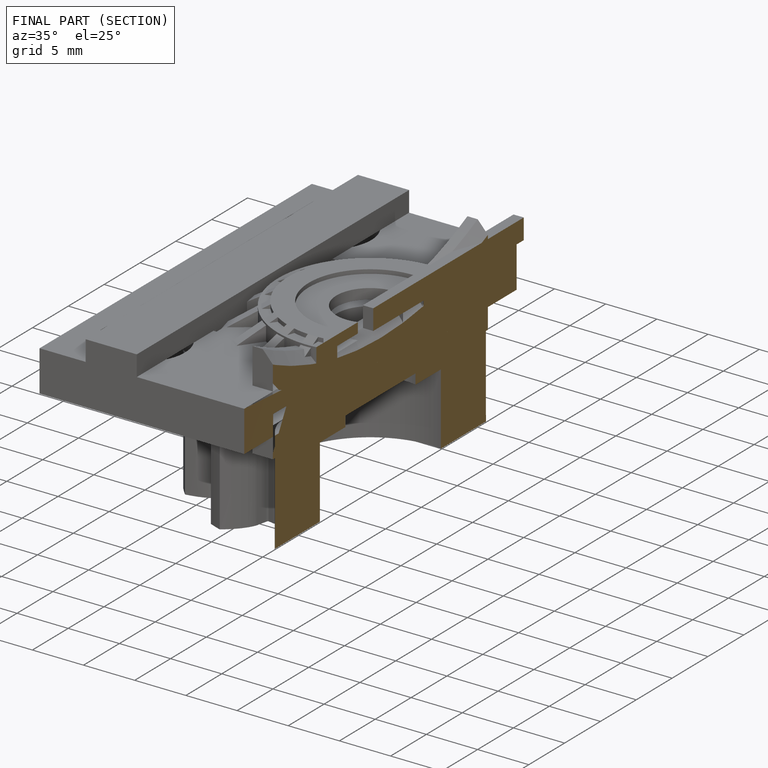
[diagram: finished part — half-section view (interior)]
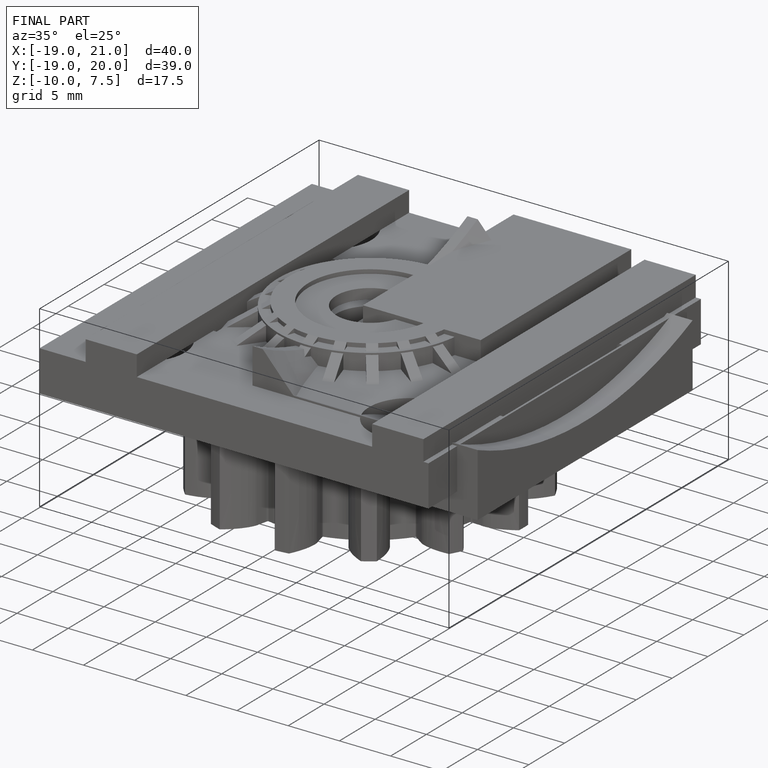
[diagram: finished part — iso view with bounding-box wireframe]
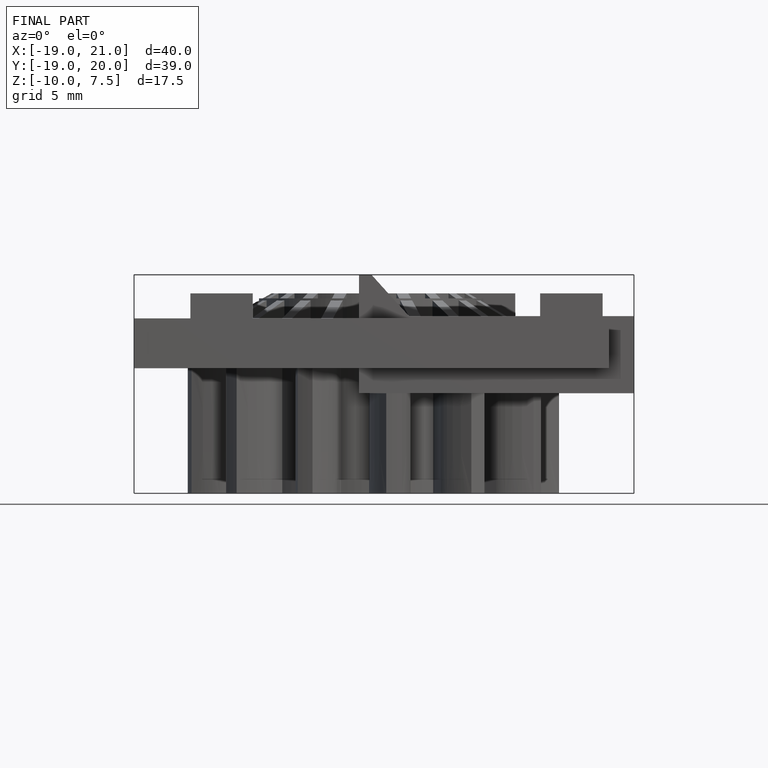
[diagram: finished part — front view with bounding-box wireframe]
